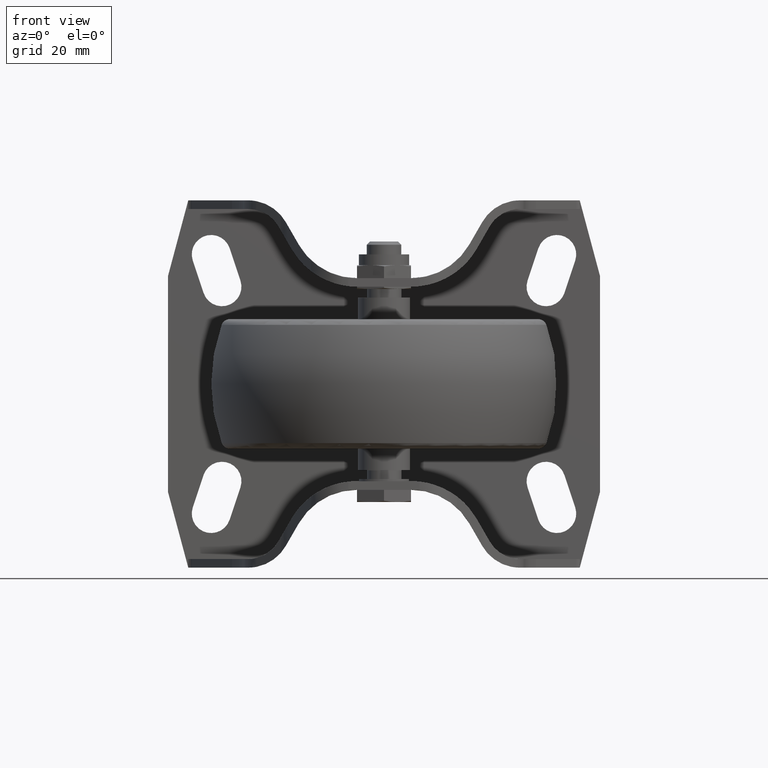
[diagram: clean part render]
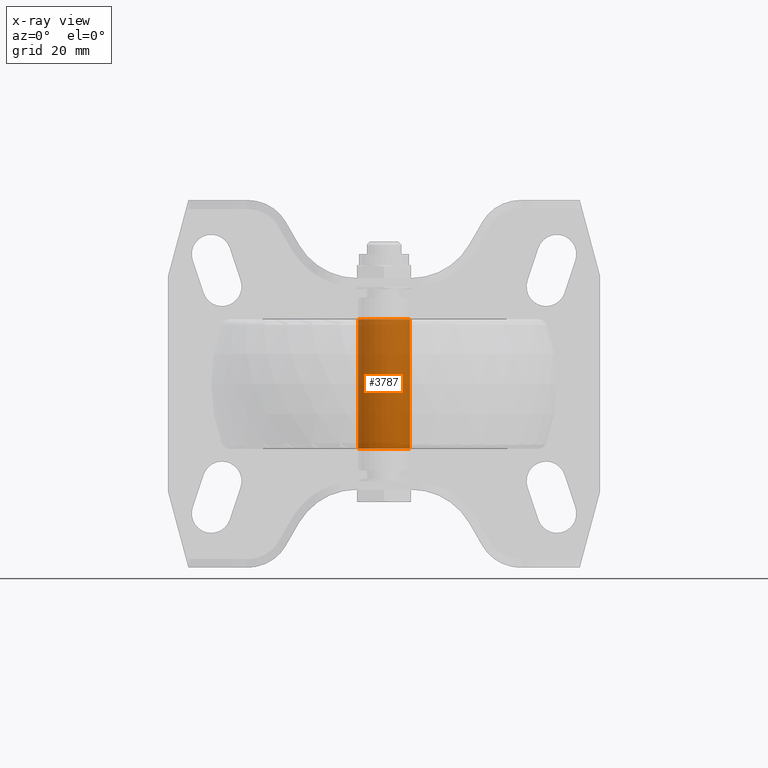
[diagram: x-ray — body ghosted, one internal face saturated and labeled with its STEP entity id]
A machine part, front view, then the same camera in x-ray: the body is ghosted and one INTERNAL B-rep face — a face not visible from any outside direction — is saturated and labeled: STEP entity #3787.
In plain terms, the highlighted cylindrical surface (bore or boss wall) has radius 6 mm, axis along (0, 0, 1).
Its self-contained STEP definition (entity closure, byte-faithful):
#511=LINE('',#6865,#771);
#771=VECTOR('',#5367,6.);
#850=CYLINDRICAL_SURFACE('',#4294,6.);
#1049=FACE_OUTER_BOUND('',#1290,.T.);
#1290=EDGE_LOOP('',(#3462,#3463,#3464,#3465));
#1458=CIRCLE('',#4295,6.);
#1459=CIRCLE('',#4296,6.);
#1867=VERTEX_POINT('',#6862);
#1868=VERTEX_POINT('',#6864);
#2402=EDGE_CURVE('',#1867,#1867,#1458,.T.);
#2403=EDGE_CURVE('',#1867,#1868,#511,.T.);
#2404=EDGE_CURVE('',#1868,#1868,#1459,.T.);
#3462=ORIENTED_EDGE('',*,*,#2402,.F.);
#3463=ORIENTED_EDGE('',*,*,#2403,.T.);
#3464=ORIENTED_EDGE('',*,*,#2404,.T.);
#3465=ORIENTED_EDGE('',*,*,#2403,.F.);
#3787=ADVANCED_FACE('',(#1049),#850,.F.);
#4294=AXIS2_PLACEMENT_3D('',#6861,#5363,#5364);
#4295=AXIS2_PLACEMENT_3D('',#6863,#5365,#5366);
#4296=AXIS2_PLACEMENT_3D('',#6866,#5368,#5369);
#5363=DIRECTION('center_axis',(0.,0.,1.));
#5364=DIRECTION('ref_axis',(1.,0.,0.));
#5365=DIRECTION('center_axis',(0.,0.,1.));
#5366=DIRECTION('ref_axis',(1.,0.,0.));
#5367=DIRECTION('',(0.,0.,1.));
#5368=DIRECTION('center_axis',(0.,0.,1.));
#5369=DIRECTION('ref_axis',(1.,0.,0.));
#6861=CARTESIAN_POINT('Origin',(0.,0.,15.));
#6862=CARTESIAN_POINT('',(-6.,-7.34788079488412E-16,-15.));
#6863=CARTESIAN_POINT('Origin',(0.,0.,-15.));
#6864=CARTESIAN_POINT('',(-6.,-7.34788079488412E-16,15.));
#6865=CARTESIAN_POINT('',(-6.,-7.34788079488412E-16,15.));
#6866=CARTESIAN_POINT('Origin',(0.,0.,15.));